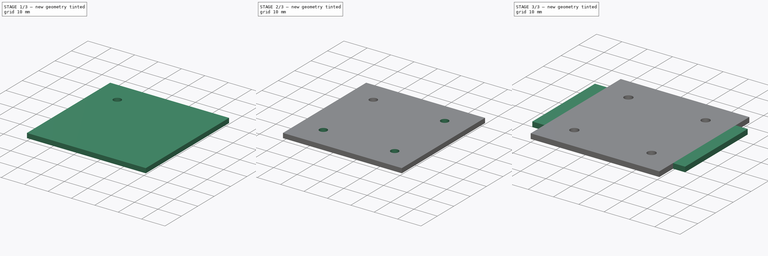
[diagram: build sequence overview — one tinted view per stage of 3, left to right]
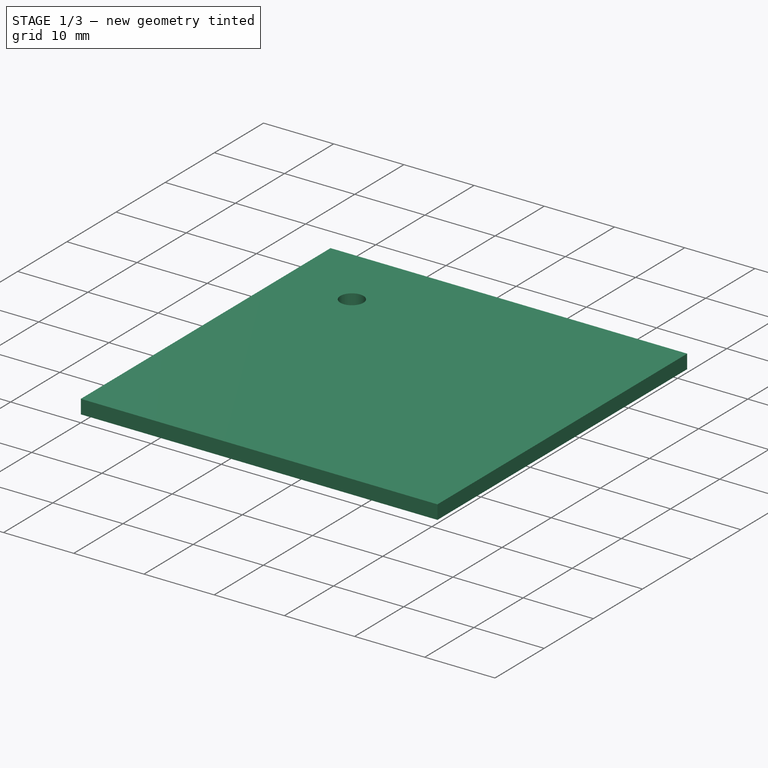
[diagram: stage 1 of 3 — iso view after this stage's code; geometry added in this stage tinted green]
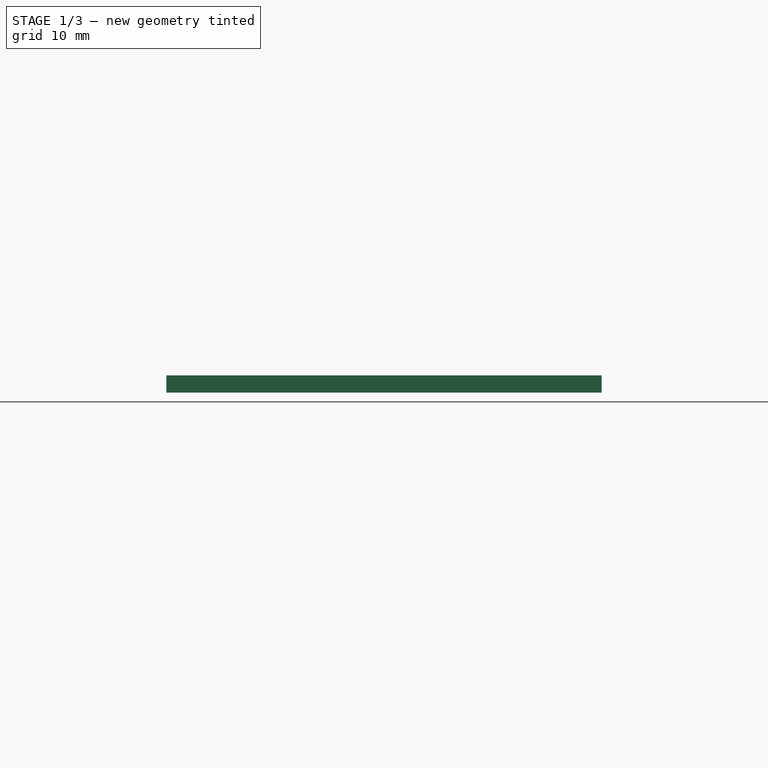
[diagram: stage 1 of 3 — front view after this stage's code; geometry added in this stage tinted green]
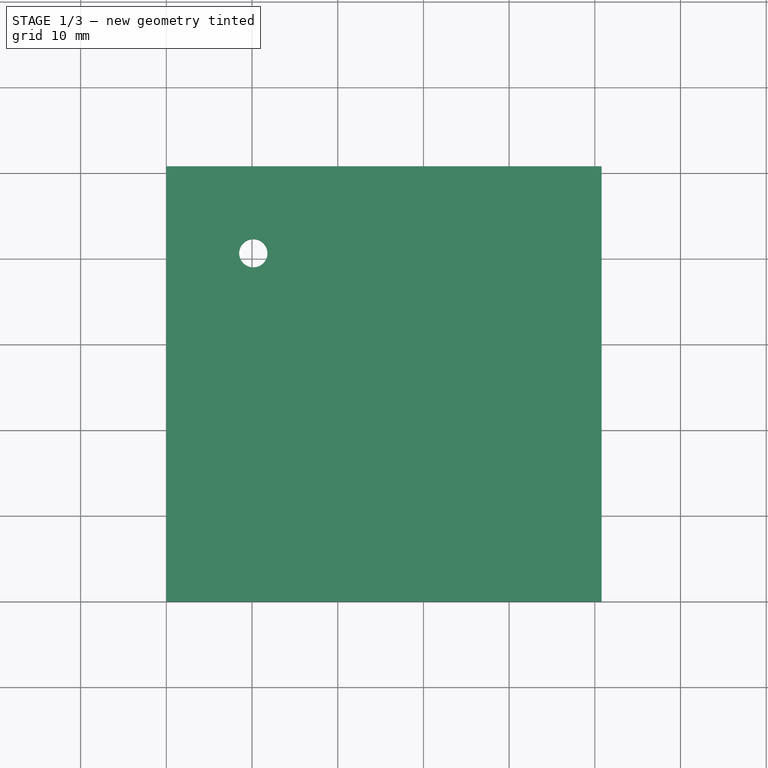
[diagram: stage 1 of 3 — top view after this stage's code; geometry added in this stage tinted green]
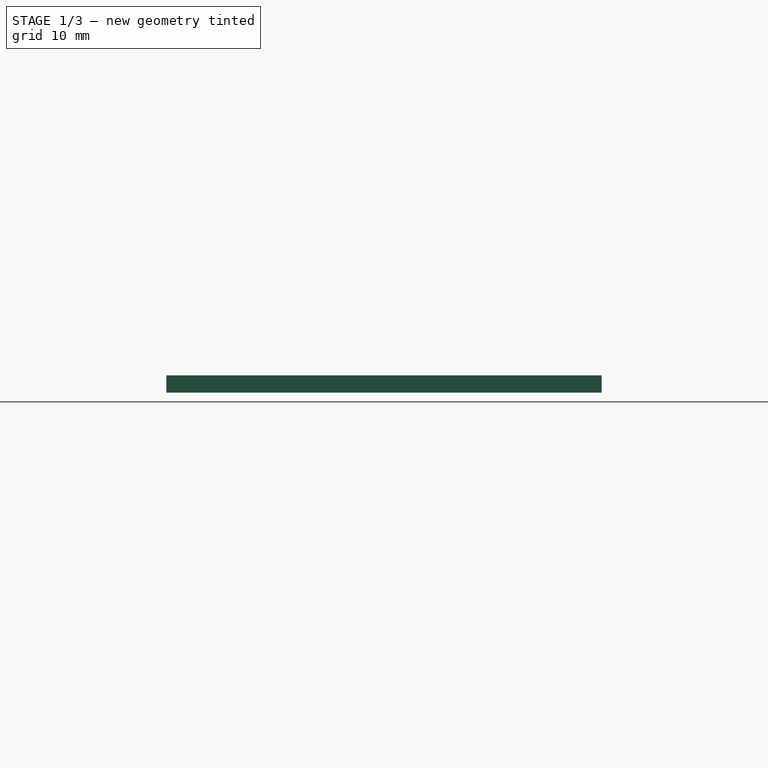
[diagram: stage 1 of 3 — right view after this stage's code; geometry added in this stage tinted green]
FCSTD DOCUMENT  (FreeCAD 0.18R16131 (Git))
Label: flightcontrollermount
License: All rights reserved
LicenseURL: http://en.wikipedia.org/wiki/All_rights_reserved
objects: Sketcher::SketchObject×3, PartDesign::Pad×2, PartDesign::Plane×2, PartDesign::LinearPattern×2, PartDesign::Hole×1, PartDesign::MultiTransform×1, PartDesign::Mirrored×1, PartDesign::Body×1
note: 16 computed .brp shape members not serialized (recipe doc carries the construction recipe); baked Part::Feature solids carry a one-line shape summary decoded from their .brp

FEATURE [Sketcher::SketchObject] Sketch
  MapMode = 5
  Support = -> [XY_Plane]
  sketch-geometry (4):
    g0: LineSegment StartX=0 StartY=0 StartZ=0 EndX=50.8 EndY=0 EndZ=0
    g1: LineSegment StartX=50.8 StartY=0 StartZ=0 EndX=50.8 EndY=50.8 EndZ=0
    g2: LineSegment StartX=50.8 StartY=50.8 StartZ=0 EndX=0 EndY=50.8 EndZ=0
    g3: LineSegment StartX=0 StartY=50.8 StartZ=0 EndX=0 EndY=0 EndZ=0
  constraints (11):
    c: Coincident(g0,g1)
    c: Coincident(g1,g2)
    c: Coincident(g2,g3)
    c: Coincident(g3,g0)
    c: Horizontal(g0)
    c: Horizontal(g2)
    c: Vertical(g1)
    c: Vertical(g3)
    c: Coincident(g0,g-1)
    c: DistanceX(g2,g2) = 50.8
    c: Equal(g2,g1)
FEATURE [PartDesign::Pad] Pad
  Length = 2
  Length2 = 100
  Profile = -> Sketch
  Refine = true
  Type = 0
FEATURE [Sketcher::SketchObject] Sketch001
  ExternalGeometry = -> [Pad]
  MapMode = 5
  Placement = pos=(0,0,2) rot=(0,0,1;0rad)
  Support = -> [Pad]
  sketch-geometry (5):
    g0: LineSegment [constr] StartX=25.4 StartY=50.8 StartZ=0 EndX=25.4 EndY=0 EndZ=0
    g1: LineSegment [constr] StartX=0 StartY=25.4 StartZ=0 EndX=50.8 EndY=25.4 EndZ=0
    g2: GeomPoint X=25.4 Y=25.4 Z=0
    g3: Circle CenterX=10.15 CenterY=40.65 CenterZ=0 NormalX=0 NormalY=0 NormalZ=1 AngleXU=0 Radius=1.6
    g4: LineSegment [constr] StartX=25.4 StartY=25.4 StartZ=0 EndX=0 EndY=50.8 EndZ=0
  constraints (16):
    c: Vertical(g0)
    c: Horizontal(g1)
    c: PointOnObject(g0,g-6)
    c: PointOnObject(g1,g-5)
    c: PointOnObject(g1,g-3)
    c: PointOnObject(g0,g-4)
    c: PointOnObject(g2,g0)
    c: PointOnObject(g2,g1)
    c: Distance(g-3) = 50.8
    c: DistanceX(g1,g2) = 25.4
    c: DistanceY(g2,g0) = 25.4
    c: Diameter(g3) = 3.2
    c: Coincident(g4,g2)
    c: Coincident(g4,g-4)
    c: PointOnObject(g3,g4)
    c: DistanceX(g3,g2) = 15.25
FEATURE [PartDesign::Hole] Hole
  BaseFeature = -> Pad
  Depth = 25
  DepthType = 1
  Diameter = 3.3
  DrillPoint = 0
  DrillPointAngle = 118
  HoleCutCountersinkAngle = 90
  HoleCutDepth = 0
  HoleCutDiameter = 3
  HoleCutType = 0
  ModelActualThread = false
  Profile = -> Sketch001
  Refine = true
  Tapered = false
  TaperedAngle = 90
  ThreadAngle = 0
  ThreadClass = 0
  ThreadCutOffInner = 0
  ThreadCutOffOuter = 0
  ThreadDirection = 0
  ThreadFit = 0
  ThreadPitch = 0
  ThreadSize = 3
  ThreadType = 1
  Threaded = false
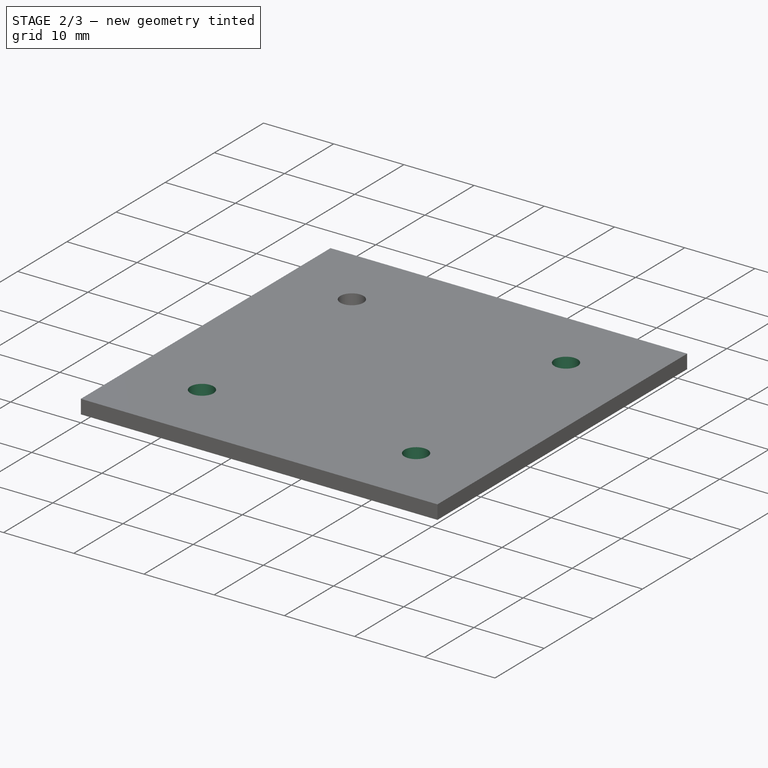
[diagram: stage 2 of 3 — iso view after this stage's code; geometry added in this stage tinted green]
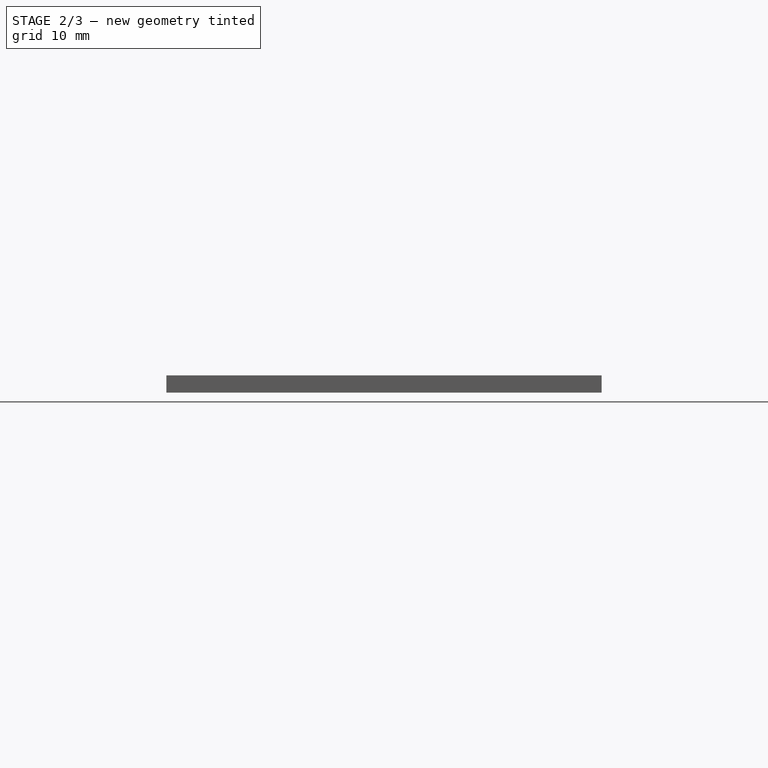
[diagram: stage 2 of 3 — front view after this stage's code; geometry added in this stage tinted green]
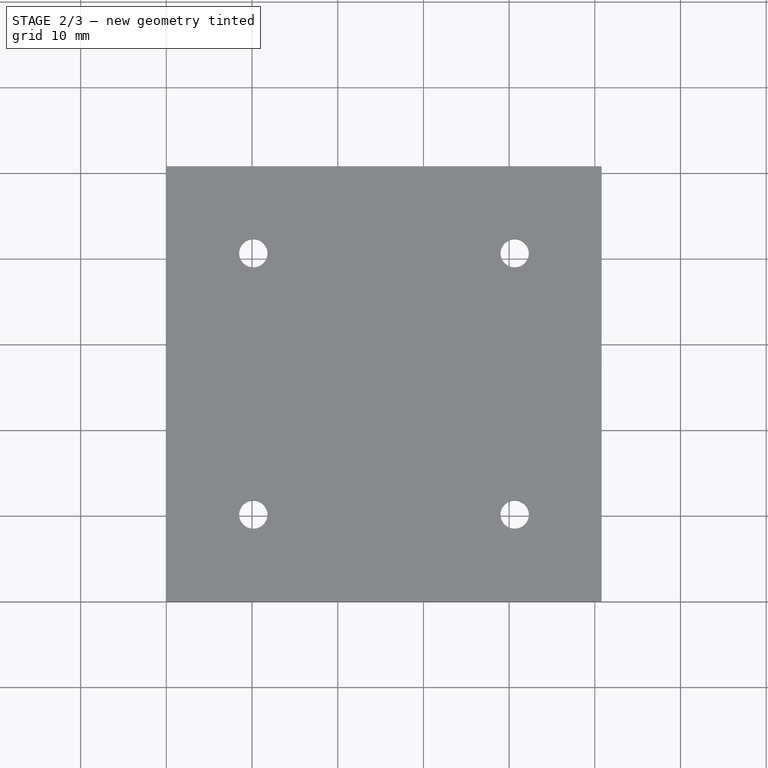
[diagram: stage 2 of 3 — top view after this stage's code; geometry added in this stage tinted green]
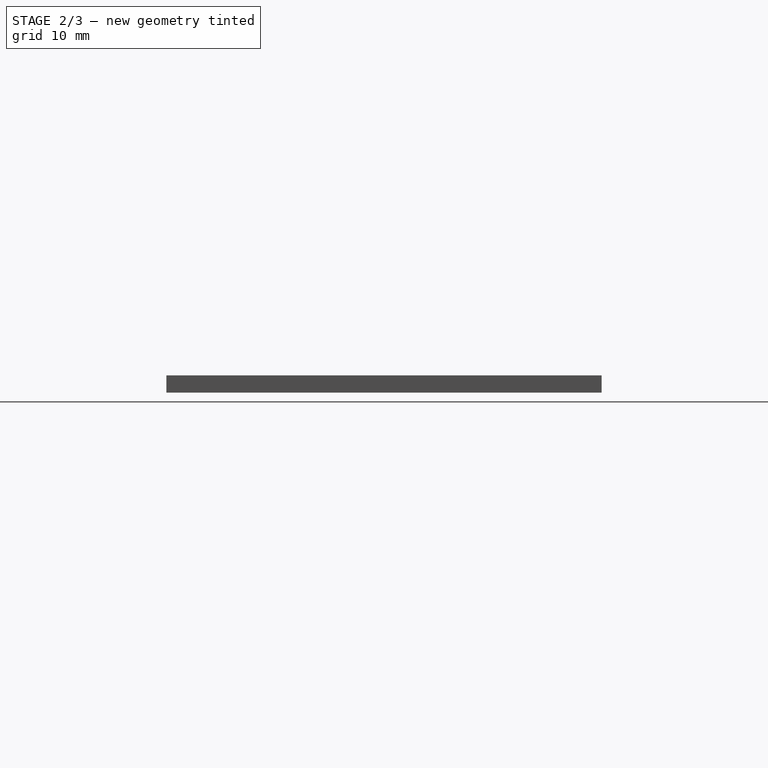
[diagram: stage 2 of 3 — right view after this stage's code; geometry added in this stage tinted green]
FEATURE [PartDesign::Plane] DatumPlane
  AttachmentOffset = pos=(0,0,-25.4) rot=(0,0,1;0rad)
  Length = 67.7742
  MapMode = 5
  Placement = pos=(25.4,0,0) rot=(0.57735,0.57735,0.57735;2.0944rad)
  ResizeMode = 0
  Support = -> [Hole]
  Width = 26.9742
FEATURE [PartDesign::Plane] DatumPlane001
  AttachmentOffset = pos=(0,0,-25.4) rot=(0,0,1;0rad)
  Length = 72.8047
  MapMode = 5
  Placement = pos=(0,25.4,-5.6e-15) rot=(1,0,0;1.5708rad)
  ResizeMode = 0
  Support = -> [Hole]
  Width = 27.2422
FEATURE [PartDesign::LinearPattern] LinearPattern
  Direction = -> DatumPlane001
  Length = 30.5
  Occurrences = 2
  Refine = true
FEATURE [PartDesign::LinearPattern] LinearPattern001
  Direction = -> DatumPlane
  Length = 30.5
  Occurrences = 2
  Refine = true
FEATURE [PartDesign::MultiTransform] MultiTransform
  BaseFeature = -> Hole
  Originals = -> [Hole]
  Refine = true
  Transformations = -> [LinearPattern,LinearPattern001]
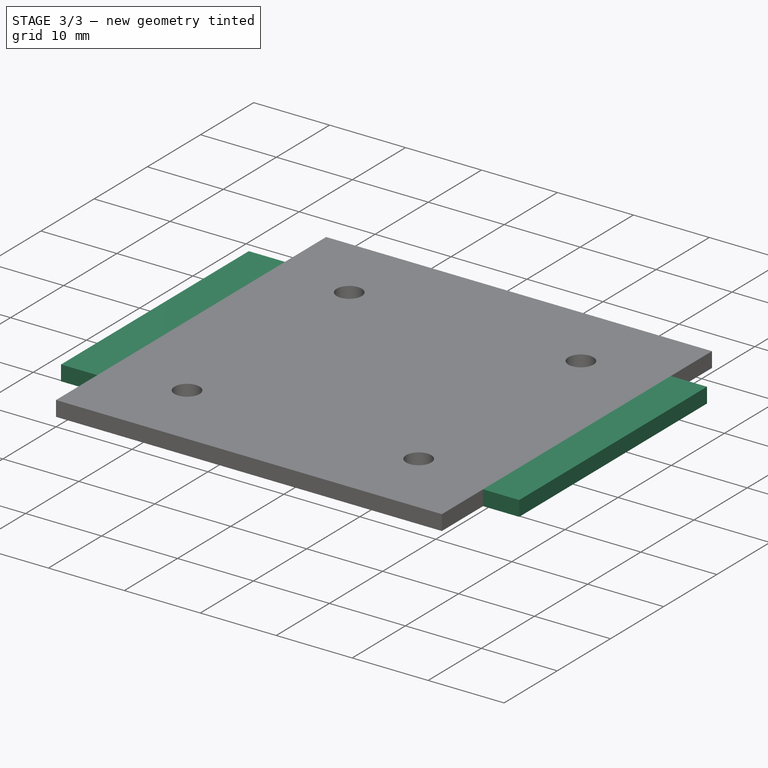
[diagram: stage 3 of 3 — iso view after this stage's code; geometry added in this stage tinted green]
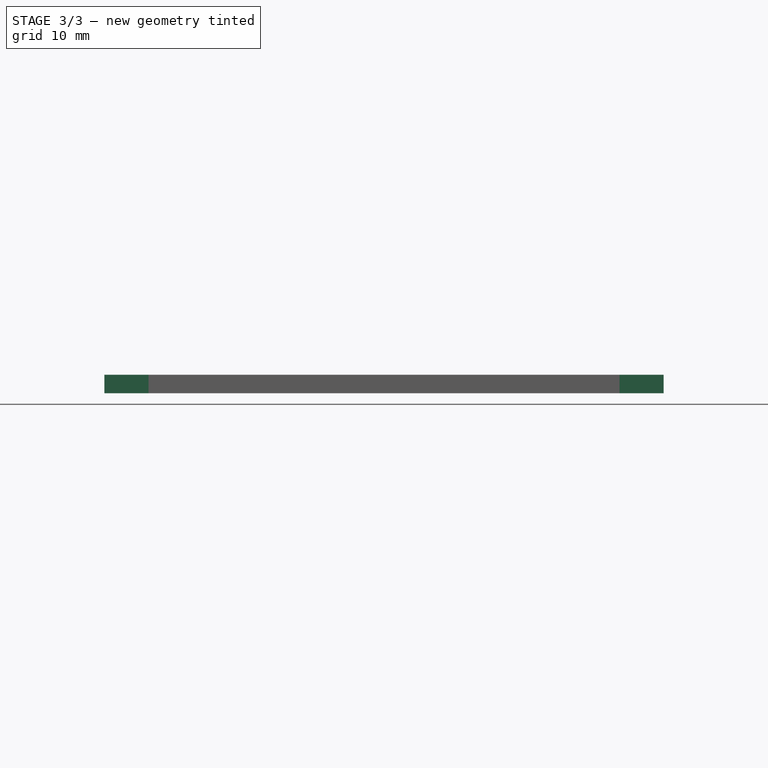
[diagram: stage 3 of 3 — front view after this stage's code; geometry added in this stage tinted green]
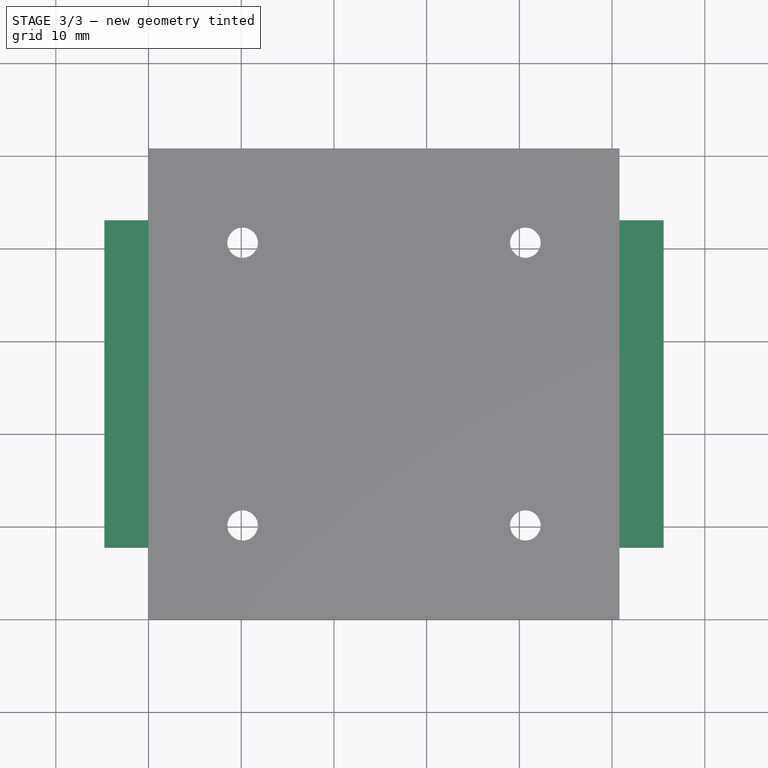
[diagram: stage 3 of 3 — top view after this stage's code; geometry added in this stage tinted green]
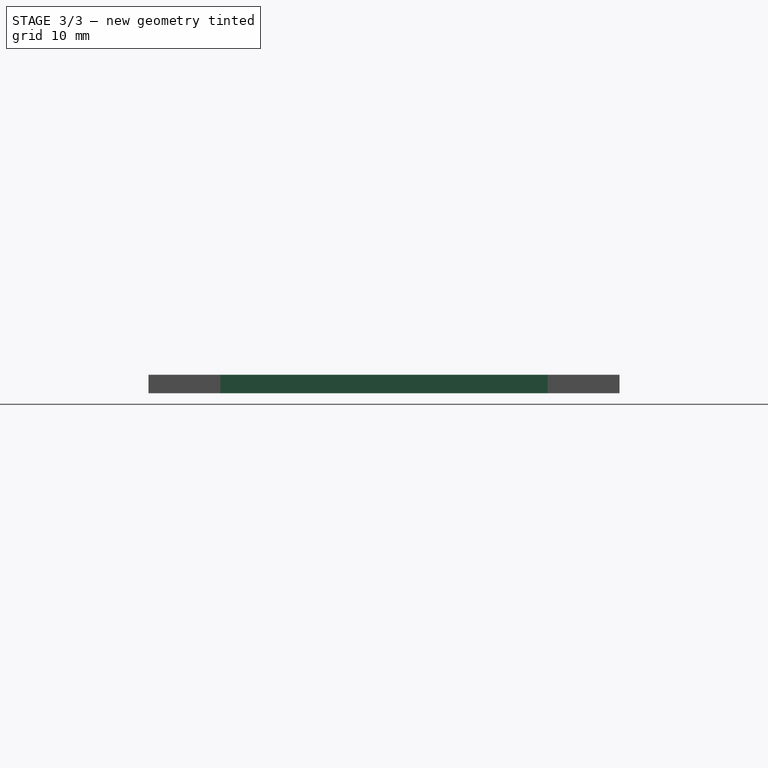
[diagram: stage 3 of 3 — right view after this stage's code; geometry added in this stage tinted green]
FEATURE [Sketcher::SketchObject] Sketch002
  ExternalGeometry = -> [MultiTransform]
  MapMode = 5
  Placement = pos=(0,25.4,-5.6e-15) rot=(1,0,0;1.5708rad)
  Support = -> [DatumPlane001]
  sketch-geometry (4):
    g0: LineSegment StartX=50.8 StartY=2 StartZ=0 EndX=55.5625 EndY=2 EndZ=0
    g1: LineSegment StartX=55.5625 StartY=2 StartZ=0 EndX=55.5625 EndY=0 EndZ=0
    g2: LineSegment StartX=55.5625 StartY=0 StartZ=0 EndX=50.8 EndY=0 EndZ=0
    g3: LineSegment StartX=50.8 StartY=0 StartZ=0 EndX=50.8 EndY=2 EndZ=0
  constraints (10):
    c: Coincident(g0,g1)
    c: Coincident(g1,g2)
    c: Coincident(g2,g3)
    c: Coincident(g3,g0)
    c: Horizontal(g0)
    c: Horizontal(g2)
    c: Vertical(g1)
    c: Coincident(g2,g-5)
    c: Coincident(g0,g-4)
    c: DistanceX(g0,g0) = 4.7625
FEATURE [PartDesign::Pad] Pad001
  BaseFeature = -> MultiTransform
  Length = 35.306
  Length2 = 100.076
  Midplane = true
  Profile = -> Sketch002
  Refine = true
  Type = 0
FEATURE [PartDesign::Mirrored] Mirrored
  BaseFeature = -> Pad001
  MirrorPlane = -> DatumPlane
  Originals = -> [Pad001]
  Refine = true
FEATURE [PartDesign::Body] Body
  Group = -> [Sketch,Pad,Sketch001,Hole,DatumPlane,DatumPlane001,MultiTransform,LinearPattern,LinearPattern001,Sketch002,Pad001,Mirrored]
  Origin = -> Origin
  Tip = -> Mirrored
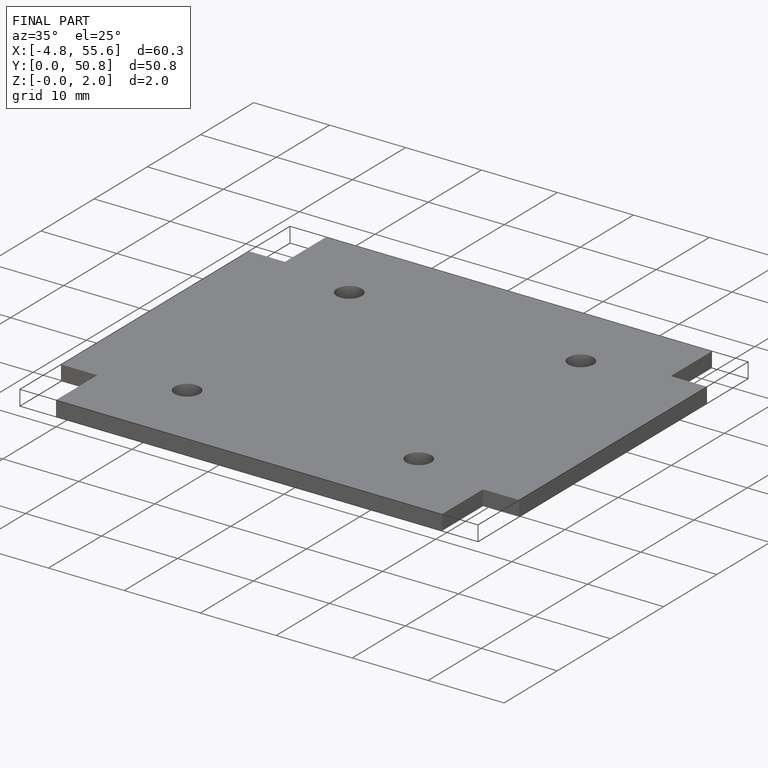
[diagram: finished part — iso view with bounding-box wireframe]
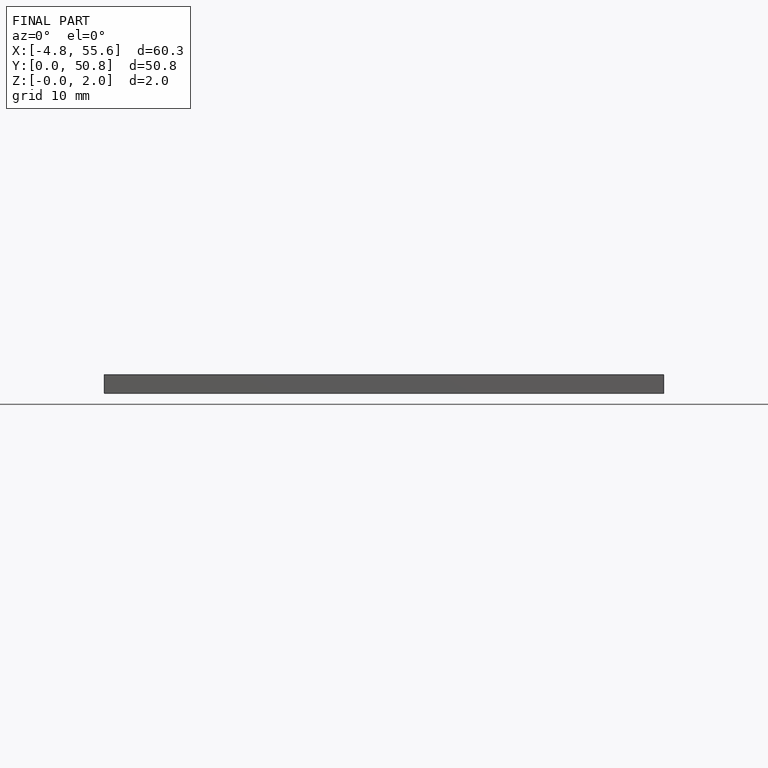
[diagram: finished part — front view with bounding-box wireframe]
